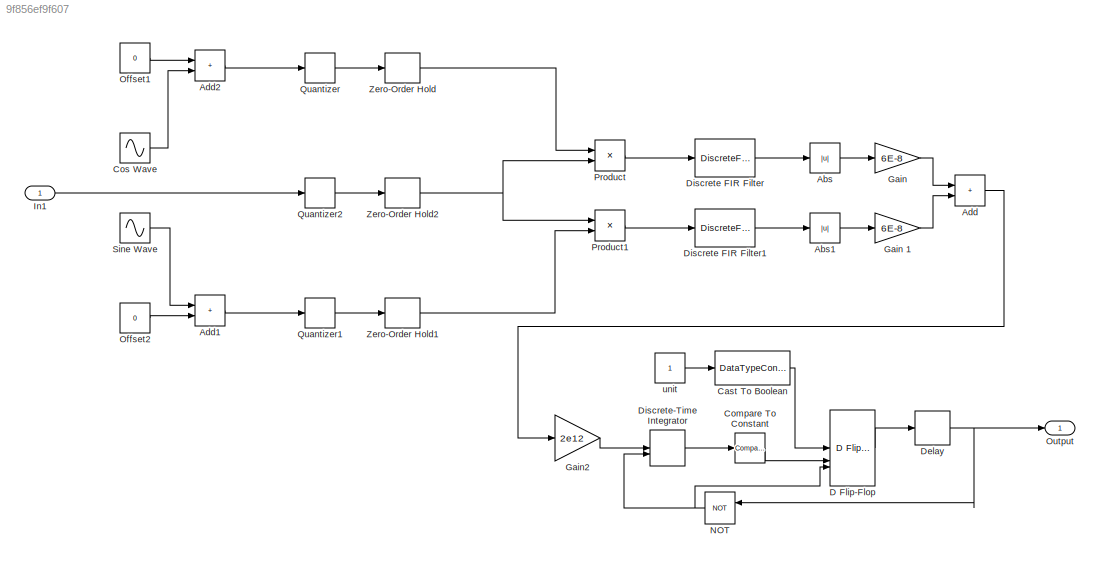
MODEL slx_9f856ef9f607
KIND model
CONFIG AbsTol = auto
CONFIG EnableMultiTasking = off
CONFIG FixedStep = auto
CONFIG MaxStep = auto
CONFIG MinStep = auto
CONFIG RelTol = 1e-3
CONFIG SampleTimeConstraint = Unconstrained
CONFIG SolverName = VariableStepAuto
CONFIG StartTime = 0.0
CONFIG StopTime = 1.0
BLOCK [Abs] Abs
  SaturateOnIntegerOverflow = off
BLOCK [Abs] Abs1
  SaturateOnIntegerOverflow = off
BLOCK [Sum] Add
  IconShape = rectangular
BLOCK [Sum] Add1
  IconShape = rectangular
BLOCK [Sum] Add2
  IconShape = rectangular
BLOCK [DataTypeConversion] Cast To Boolean
  OutDataTypeStr = boolean
  RndMeth = Floor
  SaturateOnIntegerOverflow = off
BLOCK [Reference] Compare To Constant  REF=hdlsllib/Logic and Bit
Operations/Compare
To Constant
  SourceBlock = hdlsllib/Logic and Bit\nOperations/Compare\nTo Constant
  SourceType = Compare To Constant
BLOCK [Sin] Cos Wave
  Frequency = 2*pi*500
  Phase = pi/2
  SampleTime = 1/Fs
BLOCK [Reference] D Flip-Flop   REF=simulink_extras/Flip Flops/D Flip-Flop
  SourceBlock = simulink_extras/Flip Flops/D Flip-Flop
  SourceType = DFlipFlop
BLOCK [Delay] Delay
  DelayLength = 1
  InputPortMap = u0
BLOCK [DiscreteFir] Discrete FIR Filter 
  Coefficients = [0.00025758	1.30E-05	1.32E-05	1.36E-05	1.38E-05	1.42E-05	1.45E-05	1.49E-05	1.51E-05	1.56E-05	1.58E-05	1.63E-05	1.66E-05	1.71E-05	1.74E-05	1.79E-05	1.82E-05	1.87E-05	1.88E-05	1.93E-05	1.99E-05	2.02E-05	2.06E-05	2.11E-05	2.15E-05	2.20E-05	2.24E-05	2.29E-05	2.33E-05	2.39E-05	2.42E-05	2.48E-05	2.52E-05	2.57E-05	2.61E-05	2.67E-05	2.72E-05	2.78E-05	2.82E-05	2.88E-05	2.93E-05	2.99E-05	3.03E-05	3.10E-05	3...<+12629ch>
  InputPortMap = u0
  OutputPortMap = o0
BLOCK [DiscreteFir] Discrete FIR Filter1 
  Coefficients = [0.00025758	1.30E-05	1.32E-05	1.36E-05	1.38E-05	1.42E-05	1.45E-05	1.49E-05	1.51E-05	1.56E-05	1.58E-05	1.63E-05	1.66E-05	1.71E-05	1.74E-05	1.79E-05	1.82E-05	1.87E-05	1.88E-05	1.93E-05	1.99E-05	2.02E-05	2.06E-05	2.11E-05	2.15E-05	2.20E-05	2.24E-05	2.29E-05	2.33E-05	2.39E-05	2.42E-05	2.48E-05	2.52E-05	2.57E-05	2.61E-05	2.67E-05	2.72E-05	2.78E-05	2.82E-05	2.88E-05	2.93E-05	2.99E-05	3.03E-05	3.10E-05	3...<+12629ch>
  InputPortMap = u0
  OutputPortMap = o0
BLOCK [DiscreteIntegrator] Discrete-Time Integrator 
  ExternalReset = rising
  ICPrevOutput = DiscIntNeverNeededParam
  ICPrevScaledInput = DiscIntNeverNeededParam
  InitialConditionSetting = Auto
  SampleTime = -1
  gainval = 100.0
BLOCK [Gain] Gain 
  Gain = 6E-8
BLOCK [Gain] Gain 1
  Gain = 6E-8
BLOCK [Gain] Gain2 
  Gain = 2e12
BLOCK [Inport] In1
BLOCK [Logic] NOT
  AllPortsSameDT = off
  IconShape = distinctive
  NameLocation = top
  Operator = NOT
  OutDataTypeStr = boolean
BLOCK [Constant] Offset1
  Value = 0
BLOCK [Constant] Offset2
  Value = 0
BLOCK [Outport] Output
BLOCK [Product] Product
BLOCK [Product] Product1
BLOCK [Quantizer] Quantizer
  QuantizationInterval = 1/Fs
BLOCK [Quantizer] Quantizer1
  QuantizationInterval = 1/Fs
BLOCK [Quantizer] Quantizer2
  QuantizationInterval = 1/Fs
BLOCK [Sin] Sine Wave
  Frequency = 2*pi*500
  SampleTime = 1/Fs
BLOCK [ZeroOrderHold] Zero-Order Hold
  SampleTime = -1
BLOCK [ZeroOrderHold] Zero-Order Hold1
  SampleTime = -1
BLOCK [ZeroOrderHold] Zero-Order Hold2
  SampleTime = -1
BLOCK [Constant] unit
  SampleTime = -1
LINE Abs1:1 -> Gain 1:1
LINE Abs:1 -> Gain :1
LINE Add1:1 -> Quantizer1:1
LINE Add2:1 -> Quantizer:1
LINE Add:1 -> Gain2 :1
LINE Cast To Boolean:1 -> D Flip-Flop :1
LINE Compare To Constant:1 -> D Flip-Flop :2
LINE Cos Wave:1 -> Add2:2
LINE D Flip-Flop :1 -> Delay:1
NET Delay:1 -> NOT:1, Output:1
LINE Discrete FIR Filter :1 -> Abs:1
LINE Discrete FIR Filter1 :1 -> Abs1:1
LINE Discrete-Time Integrator :1 -> Compare To Constant:1
LINE Gain 1:1 -> Add:2
LINE Gain :1 -> Add:1
LINE Gain2 :1 -> Discrete-Time Integrator :1
LINE In1:1 -> Quantizer2:1
NET NOT:1 -> D Flip-Flop :3, Discrete-Time Integrator :2
LINE Offset1:1 -> Add2:1
LINE Offset2:1 -> Add1:2
LINE Product1:1 -> Discrete FIR Filter1 :1
LINE Product:1 -> Discrete FIR Filter :1
LINE Quantizer1:1 -> Zero-Order Hold1:1
LINE Quantizer2:1 -> Zero-Order Hold2:1
LINE Quantizer:1 -> Zero-Order Hold:1
LINE Sine Wave:1 -> Add1:1
LINE Zero-Order Hold1:1 -> Product1:2
NET Zero-Order Hold2:1 -> Product1:1, Product:2
LINE Zero-Order Hold:1 -> Product:1
LINE unit:1 -> Cast To Boolean:1
note: NET lines group one-source signal fan-out (src -> all destinations, sorted); 1:1 wires keep LINE
